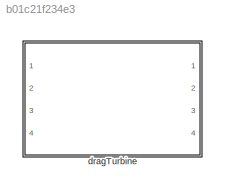
MODEL slx_b01c21f234e3
KIND library
CONFIG AbsTol = auto
CONFIG EnableMultiTasking = off
CONFIG FixedStep = auto
CONFIG MaxStep = auto
CONFIG MinStep = auto
CONFIG RelTol = 1e-3
CONFIG SampleTimeConstraint = Unconstrained
CONFIG SolverName = VariableStepAuto
CONFIG StartTime = 0.0
CONFIG StopTime = 10.0
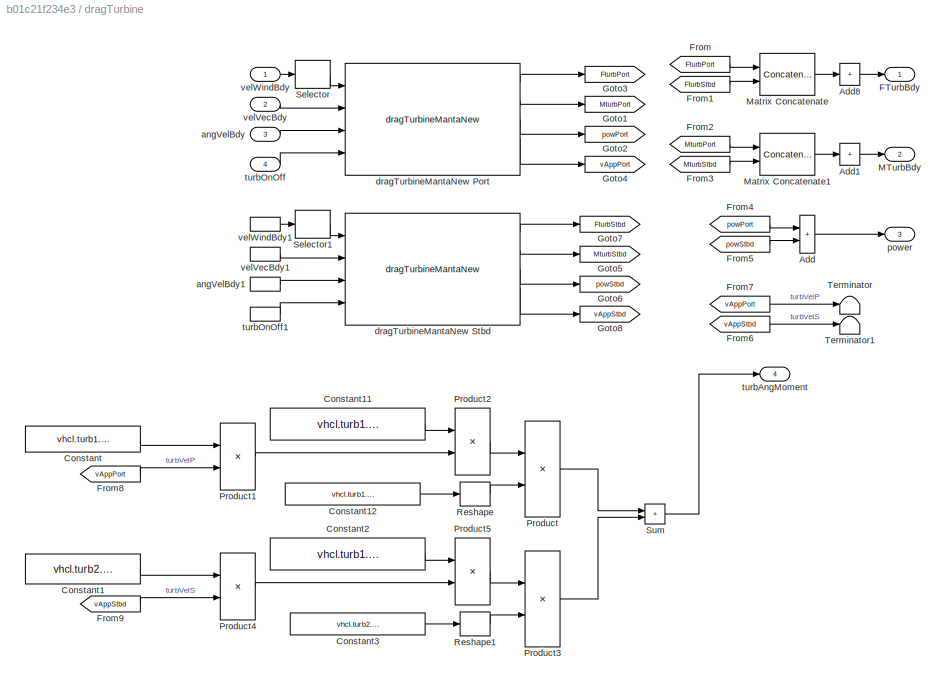
BLOCK [SubSystem] dragTurbine
  Ports = [4, 4]
  RequestExecContextInheritance = off
  TreatAsAtomicUnit = on
BLOCK [Sum] dragTurbine/Add
  IconShape = rectangular
  Ports = [2, 1]
BLOCK [Sum] dragTurbine/Add1
  CollapseDim = 2
  CollapseMode = Specified dimension
  IconShape = rectangular
  Inputs = 1
  Ports = [1, 1]
BLOCK [Sum] dragTurbine/Add8
  CollapseDim = 2
  CollapseMode = Specified dimension
  IconShape = rectangular
  Inputs = 1
  Ports = [1, 1]
BLOCK [Constant] dragTurbine/Constant
  Value = vhcl.turb1.mass.Value
BLOCK [Constant] dragTurbine/Constant1
  Value = vhcl.turb2.mass.Value
BLOCK [Constant] dragTurbine/Constant11
  Value = vhcl.turb1.momentOfInertia.Value
BLOCK [Constant] dragTurbine/Constant12
  Value = vhcl.turb1.axisUnitVec.Value
BLOCK [Constant] dragTurbine/Constant2
  Value = vhcl.turb1.momentOfInertia.Value
BLOCK [Constant] dragTurbine/Constant3
  Value = vhcl.turb2.axisUnitVec.Value
BLOCK [Outport] dragTurbine/FTurbBdy
  PortDimensions = [3,1]
  VectorParamsAs1DForOutWhenUnconnected = off
BLOCK [From] dragTurbine/From
  GotoTag = FturbPort
BLOCK [From] dragTurbine/From1
  GotoTag = FturbStbd
BLOCK [From] dragTurbine/From2
  GotoTag = MturbPort
BLOCK [From] dragTurbine/From3
  GotoTag = MturbStbd
BLOCK [From] dragTurbine/From4
  GotoTag = powPort
BLOCK [From] dragTurbine/From5
  GotoTag = powStbd
BLOCK [From] dragTurbine/From6
  GotoTag = vAppStbd
BLOCK [From] dragTurbine/From7
  GotoTag = vAppPort
BLOCK [From] dragTurbine/From8
  GotoTag = vAppPort
BLOCK [From] dragTurbine/From9
  GotoTag = vAppStbd
BLOCK [Goto] dragTurbine/Goto1
  GotoTag = MturbPort
BLOCK [Goto] dragTurbine/Goto2
  GotoTag = powPort
BLOCK [Goto] dragTurbine/Goto3
  GotoTag = FturbPort
BLOCK [Goto] dragTurbine/Goto4
  GotoTag = vAppPort
BLOCK [Goto] dragTurbine/Goto5
  GotoTag = MturbStbd
BLOCK [Goto] dragTurbine/Goto6
  GotoTag = powStbd
BLOCK [Goto] dragTurbine/Goto7
  GotoTag = FturbStbd
BLOCK [Goto] dragTurbine/Goto8
  GotoTag = vAppStbd
BLOCK [Outport] dragTurbine/MTurbBdy
  Port = 2
  PortDimensions = [3,1]
  VectorParamsAs1DForOutWhenUnconnected = off
BLOCK [Concatenate] dragTurbine/Matrix Concatenate
  ConcatenateDimension = 2
  Mode = Multidimensional array
  Ports = [2, 1]
BLOCK [Concatenate] dragTurbine/Matrix Concatenate1
  ConcatenateDimension = 2
  Mode = Multidimensional array
  Ports = [2, 1]
BLOCK [Product] dragTurbine/Product
  Ports = [2, 1]
BLOCK [Product] dragTurbine/Product1
  Ports = [2, 1]
BLOCK [Product] dragTurbine/Product2
  Ports = [2, 1]
BLOCK [Product] dragTurbine/Product3
  Ports = [2, 1]
BLOCK [Product] dragTurbine/Product4
  Ports = [2, 1]
BLOCK [Product] dragTurbine/Product5
  Ports = [2, 1]
BLOCK [Reshape] dragTurbine/Reshape
  OutputDimensionality = Column vector (2-D)
  Ports = [1, 1]
BLOCK [Reshape] dragTurbine/Reshape1
  OutputDimensionality = Column vector (2-D)
  Ports = [1, 1]
BLOCK [Selector] dragTurbine/Selector
  IndexOptions = Index vector (dialog),Index vector (dialog)
  Indices = [1 2 3],1
  InputPortWidth = 3
  NumberOfDimensions = 2
  OutputSizes = 1,1
  Ports = [1, 1]
BLOCK [Selector] dragTurbine/Selector1
  IndexOptions = Index vector (dialog),Index vector (dialog)
  Indices = [1 2 3],2
  InputPortWidth = 3
  NumberOfDimensions = 2
  OutputSizes = 1,1
  Ports = [1, 1]
BLOCK [Sum] dragTurbine/Sum
  IconShape = rectangular
  Ports = [2, 1]
BLOCK [Terminator] dragTurbine/Terminator
BLOCK [Terminator] dragTurbine/Terminator1
BLOCK [Inport] dragTurbine/angVelBdy
  Port = 3
BLOCK [InportShadow] dragTurbine/angVelBdy1
  Port = 3
BLOCK [Reference] dragTurbine/dragTurbineMantaNew Port  REF=dragTurbineVaryCpCt_ul/dragTurbineMantaNew
  Ports = [4, 5]
  SourceBlock = dragTurbineVaryCpCt_ul/dragTurbineMantaNew
BLOCK [Reference] dragTurbine/dragTurbineMantaNew Stbd  REF=dragTurbineVaryCpCt_ul/dragTurbineMantaNew
  Ports = [4, 5]
  SourceBlock = dragTurbineVaryCpCt_ul/dragTurbineMantaNew
BLOCK [Outport] dragTurbine/power
  Port = 3
  PortDimensions = [1,1]
  VectorParamsAs1DForOutWhenUnconnected = off
BLOCK [Outport] dragTurbine/turbAngMoment
  Port = 4
  PortDimensions = [3,1]
  VectorParamsAs1DForOutWhenUnconnected = off
BLOCK [Inport] dragTurbine/turbOnOff
  Port = 4
BLOCK [InportShadow] dragTurbine/turbOnOff1
  Port = 4
BLOCK [Inport] dragTurbine/velVecBdy
  Port = 2
BLOCK [InportShadow] dragTurbine/velVecBdy1
  Port = 2
BLOCK [Inport] dragTurbine/velWindBdy
BLOCK [InportShadow] dragTurbine/velWindBdy1
LINE dragTurbine/Add1:1 -> dragTurbine/MTurbBdy:1
LINE dragTurbine/Add8:1 -> dragTurbine/FTurbBdy:1
LINE dragTurbine/Add:1 -> dragTurbine/power:1
LINE dragTurbine/Constant11:1 -> dragTurbine/Product2:1
LINE dragTurbine/Constant12:1 -> dragTurbine/Reshape:1
LINE dragTurbine/Constant1:1 -> dragTurbine/Product4:1
LINE dragTurbine/Constant2:1 -> dragTurbine/Product5:1
LINE dragTurbine/Constant3:1 -> dragTurbine/Reshape1:1
LINE dragTurbine/Constant:1 -> dragTurbine/Product1:1
LINE dragTurbine/From1:1 -> dragTurbine/Matrix Concatenate:2
LINE dragTurbine/From2:1 -> dragTurbine/Matrix Concatenate1:1
LINE dragTurbine/From3:1 -> dragTurbine/Matrix Concatenate1:2
LINE dragTurbine/From4:1 -> dragTurbine/Add:1
LINE dragTurbine/From5:1 -> dragTurbine/Add:2
LINE dragTurbine/From6:1 -> dragTurbine/Terminator1:1
LINE dragTurbine/From7:1 -> dragTurbine/Terminator:1
LINE dragTurbine/From8:1 -> dragTurbine/Product1:2
LINE dragTurbine/From9:1 -> dragTurbine/Product4:2
LINE dragTurbine/From:1 -> dragTurbine/Matrix Concatenate:1
LINE dragTurbine/Matrix Concatenate1:1 -> dragTurbine/Add1:1
LINE dragTurbine/Matrix Concatenate:1 -> dragTurbine/Add8:1
LINE dragTurbine/Product1:1 -> dragTurbine/Product2:2
LINE dragTurbine/Product2:1 -> dragTurbine/Product:1
LINE dragTurbine/Product3:1 -> dragTurbine/Sum:2
LINE dragTurbine/Product4:1 -> dragTurbine/Product5:2
LINE dragTurbine/Product5:1 -> dragTurbine/Product3:1
LINE dragTurbine/Product:1 -> dragTurbine/Sum:1
LINE dragTurbine/Reshape1:1 -> dragTurbine/Product3:2
LINE dragTurbine/Reshape:1 -> dragTurbine/Product:2
LINE dragTurbine/Selector1:1 -> dragTurbine/dragTurbineMantaNew Stbd:1
LINE dragTurbine/Selector:1 -> dragTurbine/dragTurbineMantaNew Port:1
LINE dragTurbine/Sum:1 -> dragTurbine/turbAngMoment:1
LINE dragTurbine/angVelBdy1:1 -> dragTurbine/dragTurbineMantaNew Stbd:3
LINE dragTurbine/angVelBdy:1 -> dragTurbine/dragTurbineMantaNew Port:3
LINE dragTurbine/dragTurbineMantaNew Port:1 -> dragTurbine/Goto3:1
LINE dragTurbine/dragTurbineMantaNew Port:2 -> dragTurbine/Goto1:1
LINE dragTurbine/dragTurbineMantaNew Port:3 -> dragTurbine/Goto2:1
LINE dragTurbine/dragTurbineMantaNew Port:4 -> dragTurbine/Goto4:1
LINE dragTurbine/dragTurbineMantaNew Stbd:1 -> dragTurbine/Goto7:1
LINE dragTurbine/dragTurbineMantaNew Stbd:2 -> dragTurbine/Goto5:1
LINE dragTurbine/dragTurbineMantaNew Stbd:3 -> dragTurbine/Goto6:1
LINE dragTurbine/dragTurbineMantaNew Stbd:4 -> dragTurbine/Goto8:1
LINE dragTurbine/turbOnOff1:1 -> dragTurbine/dragTurbineMantaNew Stbd:4
LINE dragTurbine/turbOnOff:1 -> dragTurbine/dragTurbineMantaNew Port:4
LINE dragTurbine/velVecBdy1:1 -> dragTurbine/dragTurbineMantaNew Stbd:2
LINE dragTurbine/velVecBdy:1 -> dragTurbine/dragTurbineMantaNew Port:2
LINE dragTurbine/velWindBdy1:1 -> dragTurbine/Selector1:1
LINE dragTurbine/velWindBdy:1 -> dragTurbine/Selector:1
